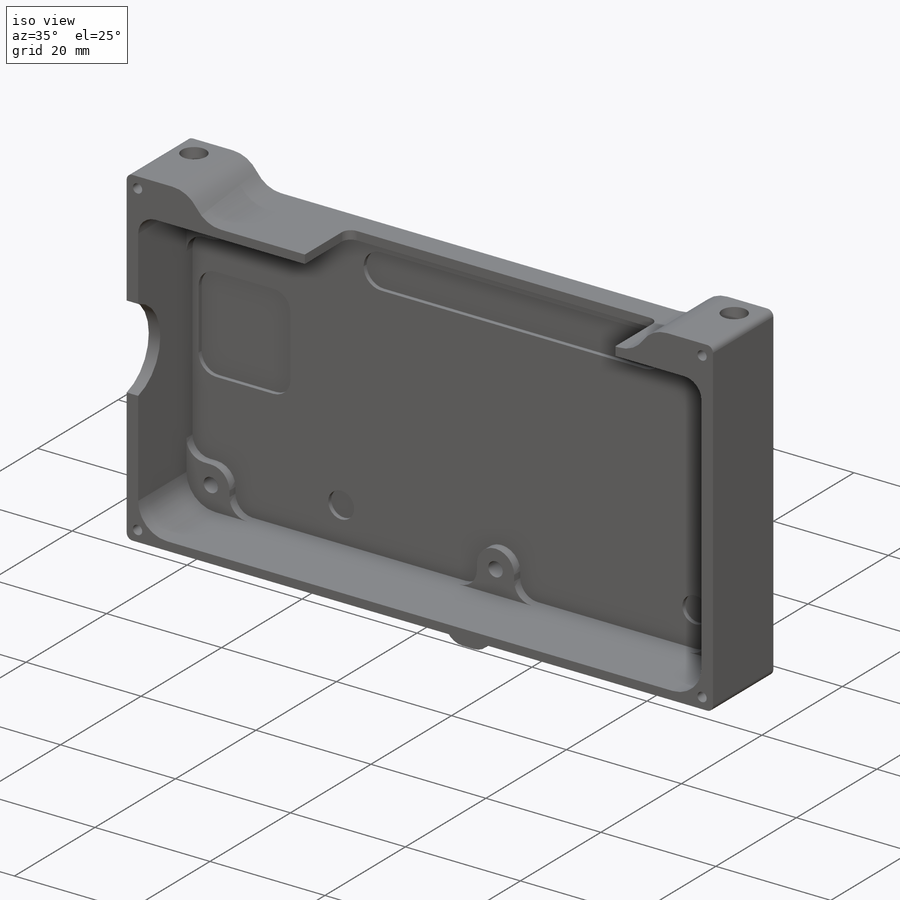
[diagram: iso view]
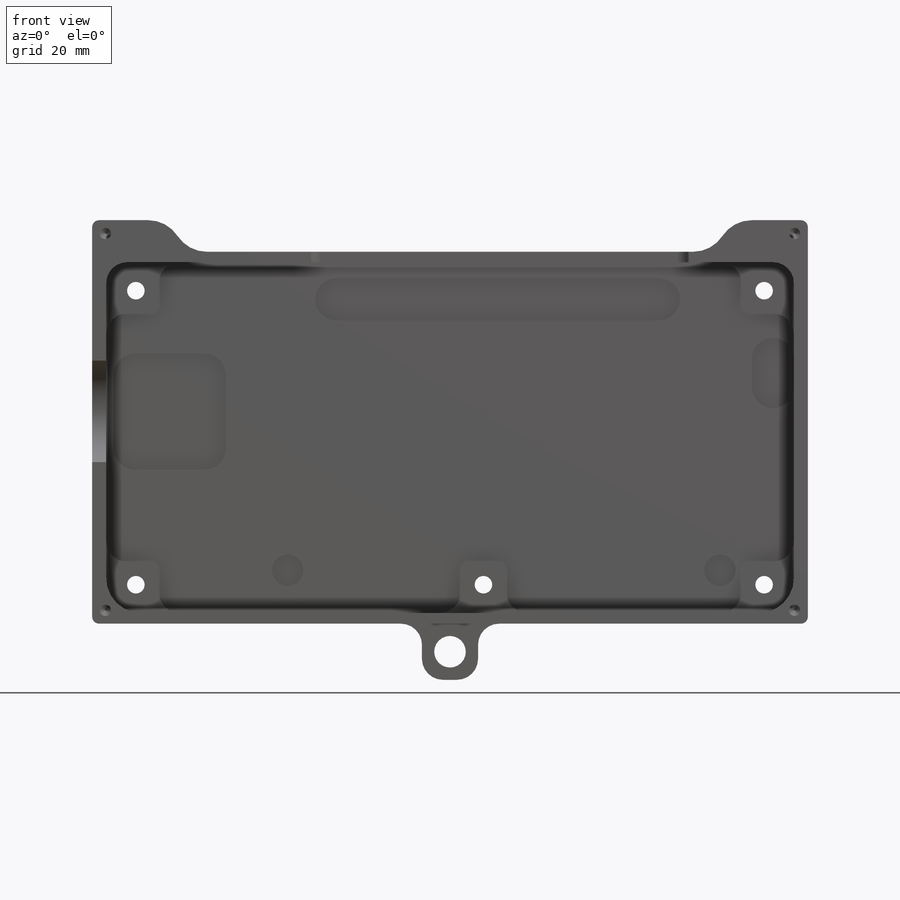
[diagram: front view]
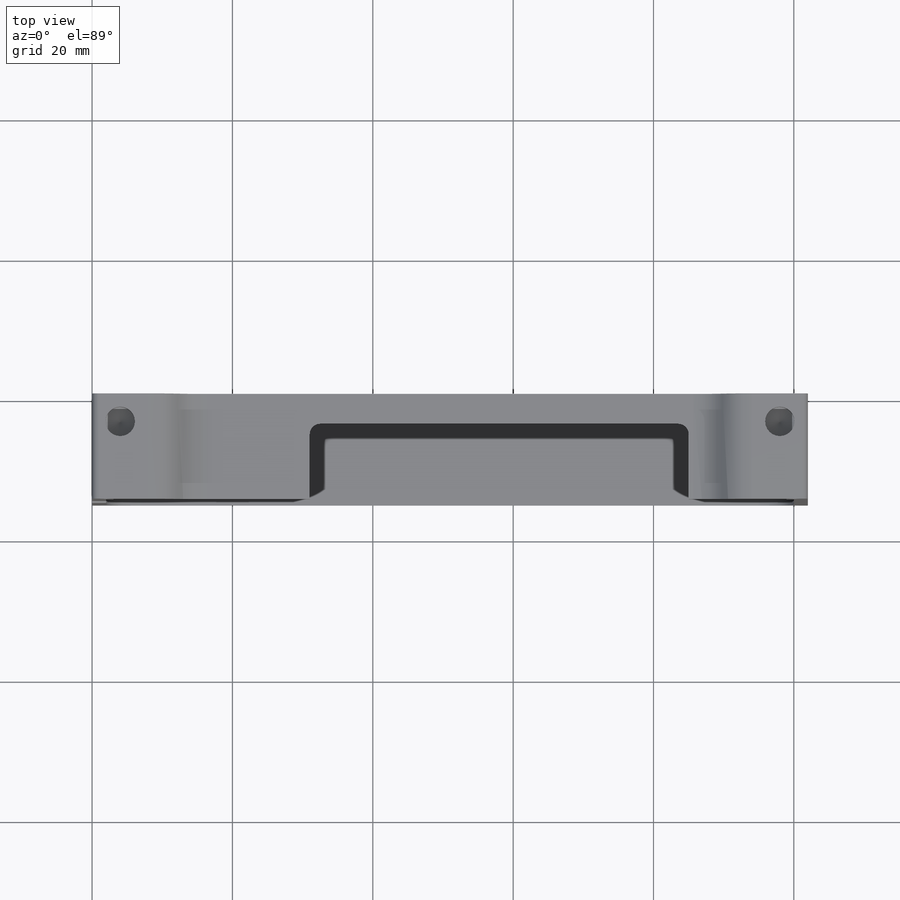
[diagram: top view]
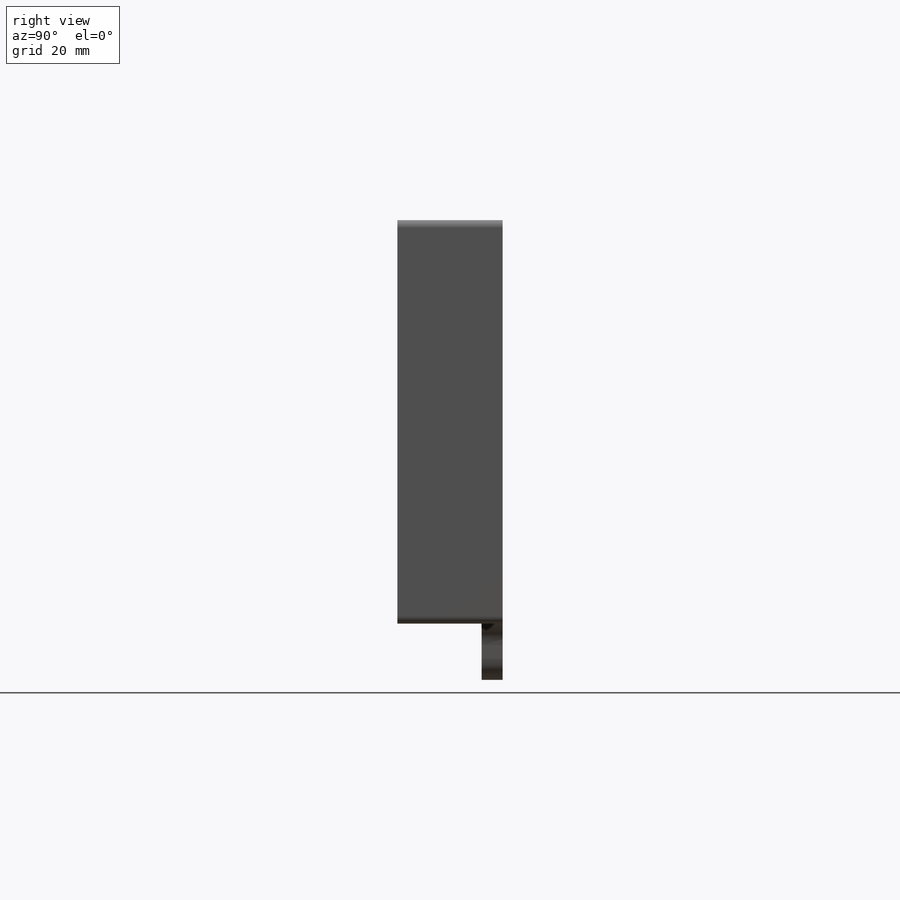
[diagram: right view]
SOLIDWORKS PART (.sldprt)
format: sldprt  version: not decoded by parser v0  size: 740,352 bytes
history: native  units: mm
features: sketch x15, thread x11, fillet x6, cut_extrude x5, plane x4, extrude x4, hole x3, material x1 (+9 scaffold rows collapsed)
feature tree (58):
  scaffold x9  (default folders/planes/origin — collapsed)
  material  "7075-T6, Platte (SS)"
  plane  "Ebene vorne"
  plane  "Ebene oben"
  plane  "Ebene rechts"
  sketch  "Skizze1"  dims[D1=2.0mm D2=2.0mm D3=6.0mm D4=1.5mm D5=50.0mm D6=98.0mm]
  extrude  "Aufsatz-Linear austragen1"  Depth=15mm
  sketch  "Skizze4"  dims[D1=6.0mm D2=2.0mm D3=2.0mm D4=1.5mm]
  cut_extrude  "Schnitt-Linear austragen1"  Depth=13.5mm
  sketch  "Skizze5"  dims[c1.D8=6.5mm c1.D1=3.18mm c1.D2=3.18mm c1.D3=3.18mm c1.D4=95.89mm c1.D5=48.26mm c2.D1=3.18mm c2.D2=3.18mm c2.D3=92.71mm c2.D6=52.71mm c2.D7=3.18mm]
  extrude  "Aufsatz-Linear austragen2"  Depth=1.5mm
  sketch  "Skizze11"  dims[c1.D1=12.0mm c1.D2=17.5mm c1.D3=1.0mm c2.D2=17.2mm c2.D4=12.0mm c2.D3=2.0mm c3.D2=~142.309896deg]
  cut_extrude  "Schnitt-Linear austragen3"  [1 undecoded]
  sketch  "Skizze12"  dims[c1.D1=1.5mm c1.D2=17.0mm c1.D3=54.0mm c1.D4=10.75mm c2.D2=9.75mm c3.D2=90.0deg c4.D2=10.765mm]
  cut_extrude  "Schnitt-Linear austragen4"  [1 undecoded]
  sketch  "Skizze13"  dims[D1=0.0mm]
  extrude  "Aufsatz-Linear austragen3"  [1 undecoded]
  hole  "M3 Gewindebohrung1"  Diameter=2.5mm Depth=3mm
  sketch  "Skizze9"
  sketch  "Skizze8"  dims[hole-wizard template sketch: 60 standard entries collapsed; hole parameters kept: c18.Bohrungstiefe=3.0mm]
  thread  "Bohrungsgewinde3"  Diameter=3mm  [1 undecoded]
  thread  "Bohrungsgewinde4"  Diameter=3mm  [1 undecoded]
  thread  "Bohrungsgewinde5"  Diameter=3mm  [1 undecoded]
  thread  "Bohrungsgewinde6"  Diameter=3mm  [1 undecoded]
  thread  "Bohrungsgewinde7"  Diameter=3mm  [1 undecoded]
  hole  "Gewindebohrung für M4x0.7 Helicoil1"  Diameter=4.2mm Depth=4mm
  sketch  "Skizze7"  dims[D1=4.0mm D2=4.0mm D3=4.0mm]
  sketch  "Skizze6"  dims[hole-wizard template sketch: 46 standard entries collapsed; hole parameters kept: c15.Bohrerdurchmesser=4.2mm c15.Bohrungstiefe=4.0mm c15.D3=~14.816244mm c15.Spitzenwinkel=118.0deg]
  thread  "Bohrungsgewinde12"  Diameter=0mm  [1 undecoded]
  thread  "Bohrungsgewinde13"  Diameter=0mm  [1 undecoded]
  fillet  "Verrundung1"  Radius=5mm
  fillet  "Verrundung2"  Radius=3mm
  fillet  "Verrundung3"  Radius=1mm
  plane  "Ebene1"
  fillet  "Verrundung4"  Radius=3mm
  hole  "M2 Gewindebohrung1"  Diameter=1.6mm Depth=6mm
  sketch  "Skizze18"  dims[D1=3.8mm]
  sketch  "Skizze17"  dims[hole-wizard template sketch: 50 standard entries collapsed; hole parameters above]
  thread  "Bohrungsgewinde8"  Diameter=4mm  [1 undecoded]
  thread  "Bohrungsgewinde9"  Diameter=4mm  [1 undecoded]
  thread  "Bohrungsgewinde10"  Diameter=4mm  [1 undecoded]
  thread  "Bohrungsgewinde11"  Diameter=4mm  [1 undecoded]
  sketch  "Skizze19"  dims[D1=5.0mm D2=1.5mm D3=8.0mm D4=8.0mm]
  cut_extrude  "Schnitt-Linear austragen5"  [1 undecoded]
  sketch  "Skizze20"  dims[D3=4.5mm D1=8.0mm D2=8.0mm]
  extrude  "Aufsatz-Linear austragen4"  Depth=3mm
  fillet  "Verrundung5"  Radius=3mm
  sketch  "Skizze21"  dims[c1.D8=2.5mm c1.D10=4.5mm c1.D1=52.0mm c1.D2=6.0mm c1.D3=12.0mm c1.D4=1.25mm c1.D5=16.0mm c1.D6=16.5mm c1.D7=3.18mm c2.D8=9.0mm c2.D9=61.6mm c2.D11=2.05mm c2.D12=6.3mm c2.D13=10.0mm c2.D14=6.0mm c2.D15=6.75mm]
  cut_extrude  "Schnitt-Linear austragen6"  Depth=0.75mm
  fillet  "Verrundung6"  Radius=3mm
decode coverage: 39 of 44 modeling features carry decoded parameters
note: ~ marks probable driven/reference dimensions
note: 15 parameter values undecoded
summary: no parameter record found for 4 features
note: suppression state not decoded; provenance and decode notes live in map.json
